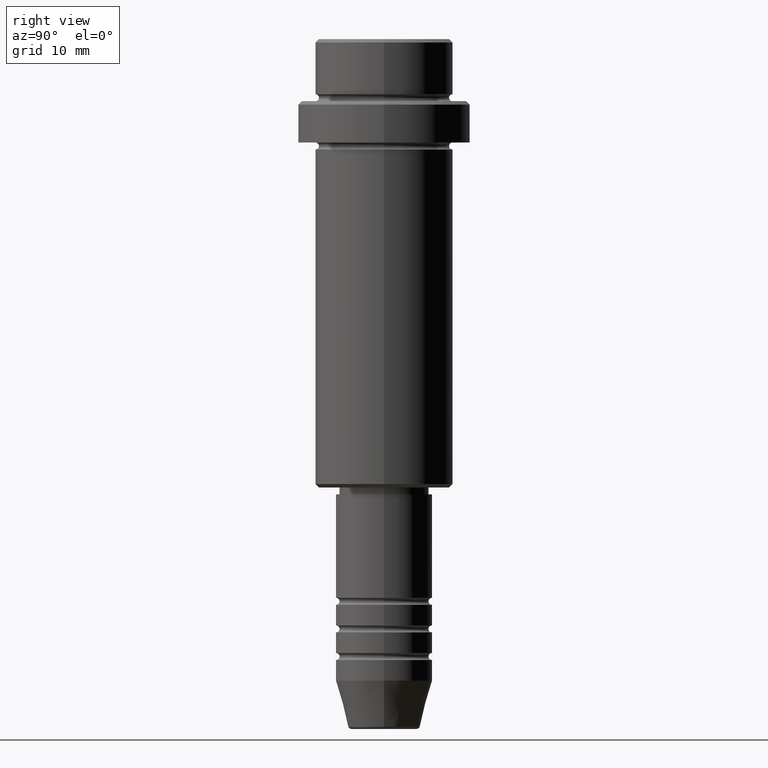
[diagram: clean part render]
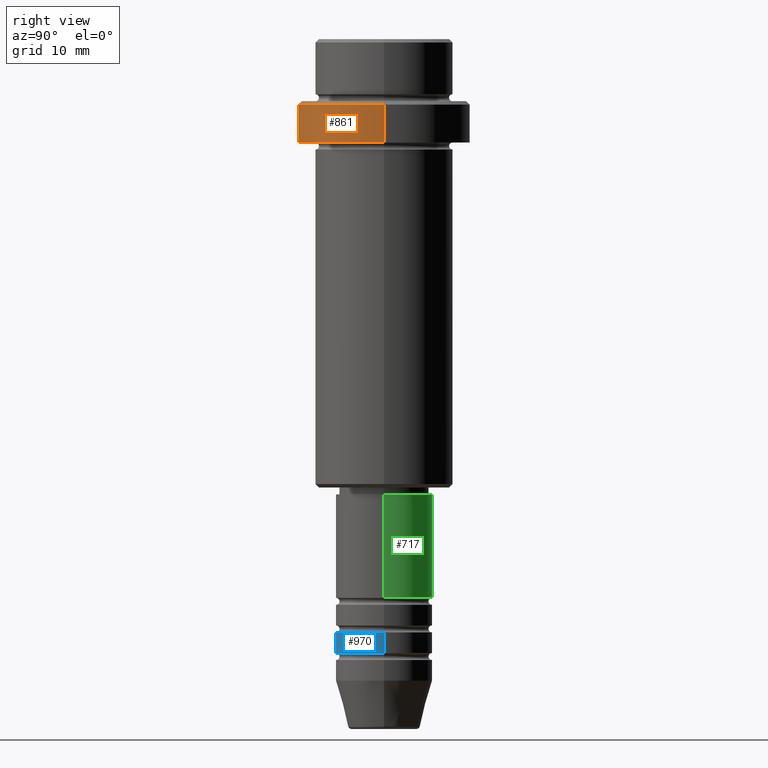
[diagram: same view with three faces highlighted in distinct colors, each labeled with its STEP entity id]
A machine part, right view with three faces highlighted in distinct colors.
Their STEP definitions:

[orange] entity #861 — the highlighted cylindrical surface (partial cylindrical patch) has radius 12.5 mm, axis along (-0, -0, 1).
#15 = ORIENTED_EDGE ( 'NONE', *, *, #375, .F. ) ;
#104 = DIRECTION ( 'NONE',  ( 0.000000000000000000, 0.000000000000000000, -1.000000000000000000 ) ) ;
#154 = CARTESIAN_POINT ( 'NONE',  ( 12.50000000000000000, 0.000000000000000000, -15.00000000000000000 ) ) ;
#171 = VECTOR ( 'NONE', #1385, 1000.000000000000000 ) ;
#308 = ORIENTED_EDGE ( 'NONE', *, *, #921, .T. ) ;
#312 = CARTESIAN_POINT ( 'NONE',  ( 0.000000000000000000, 0.000000000000000000, -15.00000000000000000 ) ) ;
#375 = EDGE_CURVE ( 'NONE', #1138, #454, #957, .T. ) ;
#391 = DIRECTION ( 'NONE',  ( 1.000000000000000000, 0.000000000000000000, 0.000000000000000000 ) ) ;
#454 = VERTEX_POINT ( 'NONE', #857 ) ;
#470 = AXIS2_PLACEMENT_3D ( 'NONE', #1117, #104, #769 ) ;
#504 = FACE_OUTER_BOUND ( 'NONE', #916, .T. ) ;
#533 = DIRECTION ( 'NONE',  ( -0.000000000000000000, -0.000000000000000000, 1.000000000000000000 ) ) ;
#597 = CARTESIAN_POINT ( 'NONE',  ( 0.000000000000000000, 0.000000000000000000, 0.000000000000000000 ) ) ;
#628 = DIRECTION ( 'NONE',  ( -0.000000000000000000, -0.000000000000000000, 1.000000000000000000 ) ) ;
#715 = DIRECTION ( 'NONE',  ( -0.000000000000000000, -0.000000000000000000, 1.000000000000000000 ) ) ;
#764 = AXIS2_PLACEMENT_3D ( 'NONE', #597, #715, #391 ) ;
#769 = DIRECTION ( 'NONE',  ( 1.000000000000000000, 0.000000000000000000, 0.000000000000000000 ) ) ;
#785 = VERTEX_POINT ( 'NONE', #961 ) ;
#814 = ORIENTED_EDGE ( 'NONE', *, *, #1319, .T. ) ;
#834 = CIRCLE ( 'NONE', #1390, 12.50000000000000000 ) ;
#857 = CARTESIAN_POINT ( 'NONE',  ( -12.50000000000000000, 1.530808498934191521E-15, -9.500000000000005329 ) ) ;
#861 = ADVANCED_FACE ( 'NONE', ( #504 ), #1382, .T. ) ;
#916 = EDGE_LOOP ( 'NONE', ( #15, #814, #1366, #308 ) ) ;
#921 = EDGE_CURVE ( 'NONE', #785, #454, #1205, .T. ) ;
#957 = LINE ( 'NONE', #1195, #171 ) ;
#961 = CARTESIAN_POINT ( 'NONE',  ( 12.50000000000000000, 0.000000000000000000, -9.500000000000005329 ) ) ;
#971 = DIRECTION ( 'NONE',  ( 1.000000000000000000, 0.000000000000000000, 0.000000000000000000 ) ) ;
#977 = VECTOR ( 'NONE', #533, 1000.000000000000000 ) ;
#993 = CARTESIAN_POINT ( 'NONE',  ( 12.50000000000000000, 0.000000000000000000, 0.000000000000000000 ) ) ;
#1088 = VERTEX_POINT ( 'NONE', #154 ) ;
#1117 = CARTESIAN_POINT ( 'NONE',  ( 0.000000000000000000, 0.000000000000000000, -9.500000000000005329 ) ) ;
#1131 = CARTESIAN_POINT ( 'NONE',  ( -12.50000000000000000, 1.530808498934191521E-15, -15.00000000000000000 ) ) ;
#1138 = VERTEX_POINT ( 'NONE', #1131 ) ;
#1195 = CARTESIAN_POINT ( 'NONE',  ( -12.50000000000000000, 1.530808498934191521E-15, 0.000000000000000000 ) ) ;
#1205 = CIRCLE ( 'NONE', #470, 12.50000000000000000 ) ;
#1319 = EDGE_CURVE ( 'NONE', #1138, #1088, #834, .T. ) ;
#1366 = ORIENTED_EDGE ( 'NONE', *, *, #1375, .T. ) ;
#1375 = EDGE_CURVE ( 'NONE', #1088, #785, #1398, .T. ) ;
#1382 = CYLINDRICAL_SURFACE ( 'NONE', #764, 12.50000000000000000 ) ;
#1385 = DIRECTION ( 'NONE',  ( -0.000000000000000000, -0.000000000000000000, 1.000000000000000000 ) ) ;
#1390 = AXIS2_PLACEMENT_3D ( 'NONE', #312, #628, #971 ) ;
#1398 = LINE ( 'NONE', #993, #977 ) ;

[blue] entity #970 — the highlighted cylindrical surface (partial cylindrical patch) has radius 7 mm, axis along (-0, -0, 1).
#5 = EDGE_LOOP ( 'NONE', ( #552, #1201, #613, #964 ) ) ;
#8 = FACE_OUTER_BOUND ( 'NONE', #5, .T. ) ;
#20 = CARTESIAN_POINT ( 'NONE',  ( -7.000000000000000000, 8.572527594031473190E-16, -88.99999999999988631 ) ) ;
#59 = AXIS2_PLACEMENT_3D ( 'NONE', #358, #1021, #683 ) ;
#264 = EDGE_CURVE ( 'NONE', #1056, #1115, #1167, .T. ) ;
#307 = DIRECTION ( 'NONE',  ( -0.000000000000000000, -0.000000000000000000, 1.000000000000000000 ) ) ;
#330 = VERTEX_POINT ( 'NONE', #518 ) ;
#358 = CARTESIAN_POINT ( 'NONE',  ( 0.000000000000000000, 0.000000000000000000, -85.99999999999988631 ) ) ;
#409 = CARTESIAN_POINT ( 'NONE',  ( 7.000000000000000000, 0.000000000000000000, -85.99999999999988631 ) ) ;
#440 = CYLINDRICAL_SURFACE ( 'NONE', #1139, 7.000000000000000000 ) ;
#500 = VERTEX_POINT ( 'NONE', #409 ) ;
#508 = CIRCLE ( 'NONE', #59, 7.000000000000000000 ) ;
#518 = CARTESIAN_POINT ( 'NONE',  ( 7.000000000000000000, 0.000000000000000000, -88.99999999999988631 ) ) ;
#552 = ORIENTED_EDGE ( 'NONE', *, *, #264, .F. ) ;
#563 = EDGE_CURVE ( 'NONE', #1056, #330, #1129, .T. ) ;
#600 = CARTESIAN_POINT ( 'NONE',  ( -7.000000000000000000, 8.572527594031473190E-16, 0.000000000000000000 ) ) ;
#603 = VECTOR ( 'NONE', #1264, 1000.000000000000000 ) ;
#613 = ORIENTED_EDGE ( 'NONE', *, *, #701, .T. ) ;
#640 = CARTESIAN_POINT ( 'NONE',  ( 0.000000000000000000, 0.000000000000000000, -88.99999999999988631 ) ) ;
#670 = EDGE_CURVE ( 'NONE', #1115, #500, #508, .T. ) ;
#683 = DIRECTION ( 'NONE',  ( 1.000000000000000000, 0.000000000000000000, 0.000000000000000000 ) ) ;
#701 = EDGE_CURVE ( 'NONE', #330, #500, #1137, .T. ) ;
#755 = DIRECTION ( 'NONE',  ( 1.000000000000000000, 0.000000000000000000, 0.000000000000000000 ) ) ;
#897 = VECTOR ( 'NONE', #935, 1000.000000000000000 ) ;
#920 = CARTESIAN_POINT ( 'NONE',  ( -7.000000000000000000, 8.572527594031473190E-16, -85.99999999999988631 ) ) ;
#935 = DIRECTION ( 'NONE',  ( -0.000000000000000000, -0.000000000000000000, 1.000000000000000000 ) ) ;
#941 = AXIS2_PLACEMENT_3D ( 'NONE', #640, #1005, #1113 ) ;
#964 = ORIENTED_EDGE ( 'NONE', *, *, #670, .F. ) ;
#970 = ADVANCED_FACE ( 'NONE', ( #8 ), #440, .T. ) ;
#1005 = DIRECTION ( 'NONE',  ( -0.000000000000000000, -0.000000000000000000, 1.000000000000000000 ) ) ;
#1021 = DIRECTION ( 'NONE',  ( -0.000000000000000000, -0.000000000000000000, 1.000000000000000000 ) ) ;
#1056 = VERTEX_POINT ( 'NONE', #20 ) ;
#1113 = DIRECTION ( 'NONE',  ( 1.000000000000000000, 0.000000000000000000, 0.000000000000000000 ) ) ;
#1115 = VERTEX_POINT ( 'NONE', #920 ) ;
#1129 = CIRCLE ( 'NONE', #941, 7.000000000000000000 ) ;
#1137 = LINE ( 'NONE', #1232, #897 ) ;
#1139 = AXIS2_PLACEMENT_3D ( 'NONE', #1294, #307, #755 ) ;
#1167 = LINE ( 'NONE', #600, #603 ) ;
#1201 = ORIENTED_EDGE ( 'NONE', *, *, #563, .T. ) ;
#1232 = CARTESIAN_POINT ( 'NONE',  ( 7.000000000000000000, 0.000000000000000000, 0.000000000000000000 ) ) ;
#1264 = DIRECTION ( 'NONE',  ( -0.000000000000000000, -0.000000000000000000, 1.000000000000000000 ) ) ;
#1294 = CARTESIAN_POINT ( 'NONE',  ( 0.000000000000000000, 0.000000000000000000, 0.000000000000000000 ) ) ;

[green] entity #717 — the highlighted cylindrical surface (partial cylindrical patch) has radius 7 mm, axis along (-0, -0, 1).
#37 = VERTEX_POINT ( 'NONE', #1250 ) ;
#156 = CARTESIAN_POINT ( 'NONE',  ( 0.000000000000000000, 0.000000000000000000, -80.99999999999987210 ) ) ;
#160 = LINE ( 'NONE', #166, #985 ) ;
#166 = CARTESIAN_POINT ( 'NONE',  ( 7.000000000000000000, 0.000000000000000000, 0.000000000000000000 ) ) ;
#208 = CARTESIAN_POINT ( 'NONE',  ( -7.000000000000000000, 8.572527594031473190E-16, 0.000000000000000000 ) ) ;
#213 = EDGE_CURVE ( 'NONE', #1206, #876, #160, .T. ) ;
#239 = CYLINDRICAL_SURFACE ( 'NONE', #534, 7.000000000000000000 ) ;
#265 = CARTESIAN_POINT ( 'NONE',  ( 7.000000000000000000, 0.000000000000000000, -66.00000000000000000 ) ) ;
#372 = CIRCLE ( 'NONE', #557, 7.000000000000000000 ) ;
#385 = DIRECTION ( 'NONE',  ( -0.000000000000000000, -0.000000000000000000, 1.000000000000000000 ) ) ;
#466 = DIRECTION ( 'NONE',  ( -0.000000000000000000, -0.000000000000000000, 1.000000000000000000 ) ) ;
#467 = EDGE_CURVE ( 'NONE', #876, #665, #372, .T. ) ;
#534 = AXIS2_PLACEMENT_3D ( 'NONE', #1133, #466, #1016 ) ;
#546 = ORIENTED_EDGE ( 'NONE', *, *, #213, .F. ) ;
#557 = AXIS2_PLACEMENT_3D ( 'NONE', #1376, #385, #1287 ) ;
#561 = FACE_OUTER_BOUND ( 'NONE', #702, .T. ) ;
#642 = ORIENTED_EDGE ( 'NONE', *, *, #1010, .T. ) ;
#646 = DIRECTION ( 'NONE',  ( -0.000000000000000000, -0.000000000000000000, 1.000000000000000000 ) ) ;
#659 = EDGE_CURVE ( 'NONE', #1206, #37, #1166, .T. ) ;
#665 = VERTEX_POINT ( 'NONE', #822 ) ;
#702 = EDGE_LOOP ( 'NONE', ( #1001, #642, #1004, #546 ) ) ;
#717 = ADVANCED_FACE ( 'NONE', ( #561 ), #239, .T. ) ;
#759 = LINE ( 'NONE', #208, #1051 ) ;
#822 = CARTESIAN_POINT ( 'NONE',  ( -7.000000000000000000, 8.572527594031473190E-16, -66.00000000000000000 ) ) ;
#826 = CARTESIAN_POINT ( 'NONE',  ( 7.000000000000000000, 0.000000000000000000, -80.99999999999987210 ) ) ;
#876 = VERTEX_POINT ( 'NONE', #265 ) ;
#929 = DIRECTION ( 'NONE',  ( 1.000000000000000000, 0.000000000000000000, 0.000000000000000000 ) ) ;
#985 = VECTOR ( 'NONE', #1285, 1000.000000000000000 ) ;
#1001 = ORIENTED_EDGE ( 'NONE', *, *, #659, .T. ) ;
#1004 = ORIENTED_EDGE ( 'NONE', *, *, #467, .F. ) ;
#1010 = EDGE_CURVE ( 'NONE', #37, #665, #759, .T. ) ;
#1016 = DIRECTION ( 'NONE',  ( 1.000000000000000000, 0.000000000000000000, 0.000000000000000000 ) ) ;
#1051 = VECTOR ( 'NONE', #646, 1000.000000000000000 ) ;
#1133 = CARTESIAN_POINT ( 'NONE',  ( 0.000000000000000000, 0.000000000000000000, 0.000000000000000000 ) ) ;
#1146 = AXIS2_PLACEMENT_3D ( 'NONE', #156, #1352, #929 ) ;
#1166 = CIRCLE ( 'NONE', #1146, 7.000000000000000000 ) ;
#1206 = VERTEX_POINT ( 'NONE', #826 ) ;
#1250 = CARTESIAN_POINT ( 'NONE',  ( -7.000000000000000000, 8.572527594031473190E-16, -80.99999999999987210 ) ) ;
#1285 = DIRECTION ( 'NONE',  ( -0.000000000000000000, -0.000000000000000000, 1.000000000000000000 ) ) ;
#1287 = DIRECTION ( 'NONE',  ( 1.000000000000000000, 0.000000000000000000, 0.000000000000000000 ) ) ;
#1352 = DIRECTION ( 'NONE',  ( -0.000000000000000000, -0.000000000000000000, 1.000000000000000000 ) ) ;
#1376 = CARTESIAN_POINT ( 'NONE',  ( 0.000000000000000000, 0.000000000000000000, -66.00000000000000000 ) ) ;